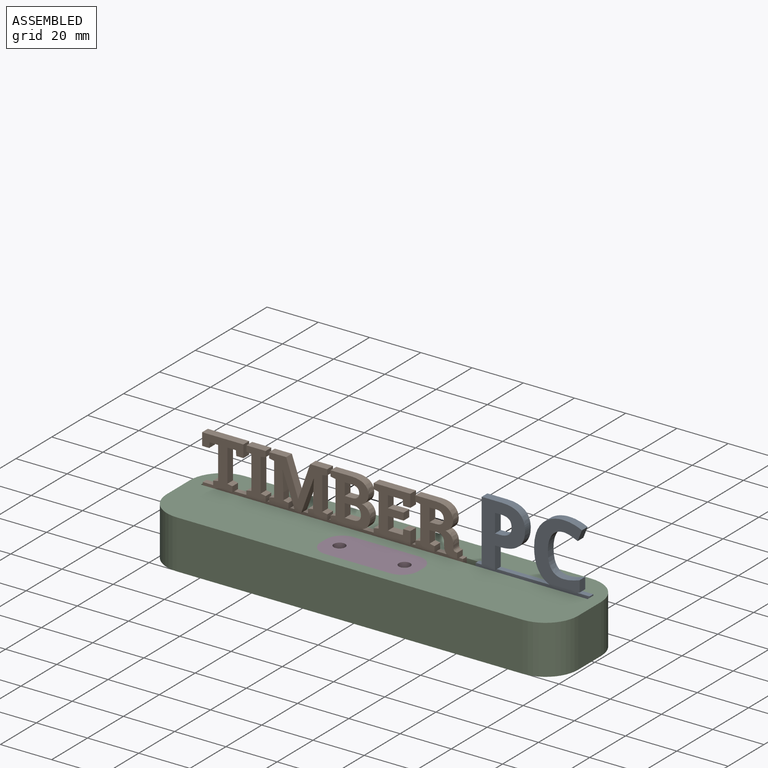
[diagram: assembled view]
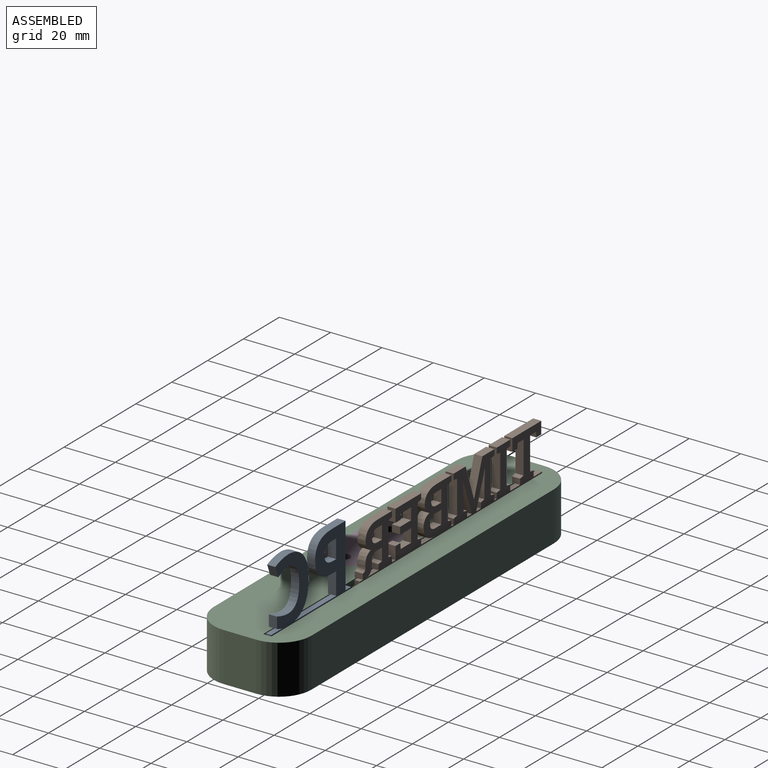
[diagram: assembled view, second angle]
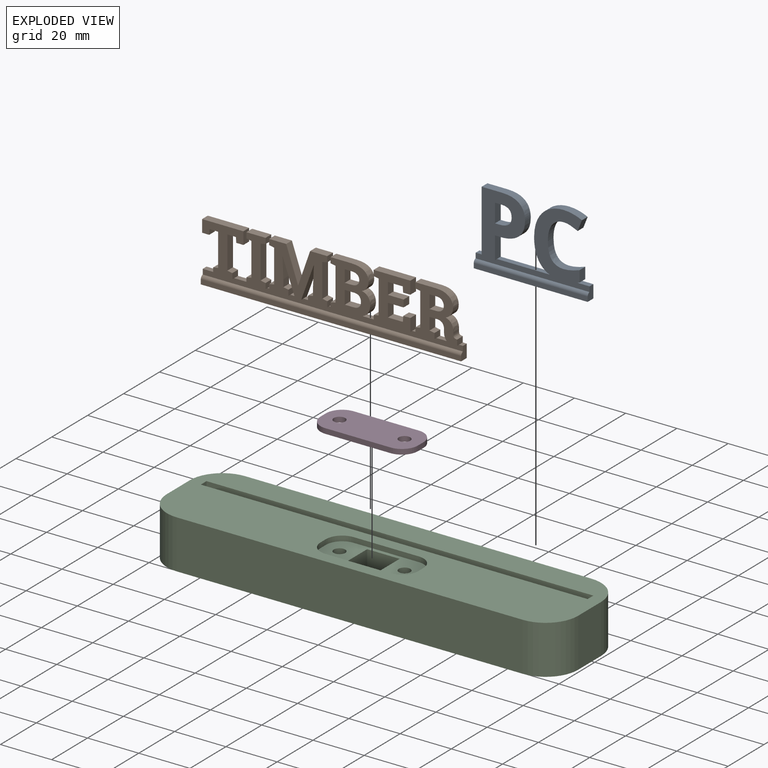
[diagram: exploded view]
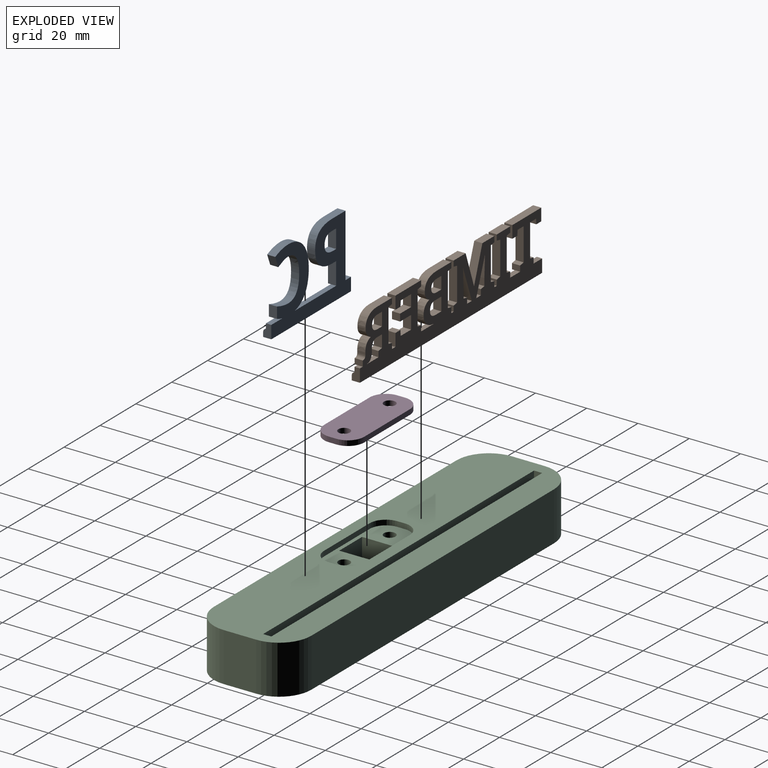
[diagram: exploded view, second angle]
ASSEMBLY  parts=4 mates=3
PART A: 44 faces, bbox 44.5x29.9x3.2 mm
  f0: plane 44.45x2mm, normal (0,0,1), area 88.9mm2, adj f8,f17,f18,f20,f21,f38,f40,f43
  f1: plane 3.18x1.71mm, normal (0,1,0), area 5.4mm2, adj f2,f36,f37,f39
  f2: plane 7.27x3.18mm, normal (1,0,0), area 23.1mm2, adj f1,f3,f37,f39
  f3: plane 3.18x2.36mm, normal (0,-1,0), area 7.5mm2, adj f2,f4,f37,f39
  f4: extruded ~3.18x3.13mm, area 10.5mm2, adj f3,f5,f37,f39
  f5: extruded ~3.18x2.7mm, area 9.4mm2, adj f4,f6,f37,f39
  f6: extruded ~3.18x2.75mm, area 9.9mm2, adj f5,f36,f37,f39
  f7: extruded ~4.99x3.18mm, area 18.7mm2, adj f8,f35,f37,f40,f41
  f8: plane 23.09x2.12mm, normal (0,1,0), area 48.9mm2, adj f0,f7,f9,f37
  f9: plane 8.72x3.18mm, normal (1,0,0), area 27.7mm2, adj f8,f10,f37,f38,f39
  f10: plane 3.18x2.23mm, normal (0,-1,0), area 7.1mm2, adj f9,f11,f37,f39
  f11: extruded ~7.03x3.18mm, area 23.8mm2, adj f10,f12,f37,f39
  f12: extruded ~6.05x3.18mm, area 21.5mm2, adj f11,f13,f37,f39
  f13: extruded ~5.72x3.18mm, area 20.3mm2, adj f12,f14,f37,f39
  f14: extruded ~6.78x3.18mm, area 22.8mm2, adj f13,f15,f37,f39
  f15: plane 7.83x3.18mm, normal (0,1,0), area 24.8mm2, adj f14,f16,f37,f39
  f16: plane 24.51x3.18mm, normal (-1,0,0), area 77.8mm2, adj f15,f17,f37,f38,f39
  f17: plane 3.08x2.12mm, normal (0,1,0), area 6.5mm2, adj f0,f16,f18,f37
  f18: plane 5.08x3.18mm, normal (-1,0,0), area 13.7mm2, adj f0,f17,f19,f37,f42,f43
  f19: plane 44.45x3.18mm, normal (0,-1,0), area 141.1mm2, adj f18,f20,f37,f42
  f20: plane 5.08x3.18mm, normal (1,0,0), area 13.7mm2, adj f0,f19,f21,f37,f42,f43
  f21: plane 6.22x2.12mm, normal (0,1,0), area 13.2mm2, adj f0,f20,f22,f37
  f22: extruded ~3.18x3.07mm, area 10.2mm2, adj f21,f23,f37,f40,f41
  f23: plane 4.36x3.18mm, normal (1,0,0), area 13.8mm2, adj f22,f24,f37,f41
  f24: extruded ~6.25x3.18mm, area 20.3mm2, adj f23,f25,f37,f41
  f25: extruded ~8.2x6.15mm, area 37.1mm2, adj f24,f26,f37,f41
  f26: extruded ~6.14x3.18mm, area 20.5mm2, adj f25,f27,f37,f41
  f27: extruded ~4.54x3.18mm, area 16.7mm2, adj f26,f28,f37,f41
  f28: extruded ~3.18x2.73mm, area 8.8mm2, adj f27,f29,f37,f41
  f29: extruded ~3.18x2.77mm, area 9.5mm2, adj f28,f30,f37,f41
  f30: plane 4.23x3.18mm, normal (0.93,-0.37,0), area 14.4mm2, adj f29,f31,f37,f41
  f31: extruded ~7.17x3.18mm, area 23.6mm2, adj f30,f32,f37,f41
  f32: extruded ~6.11x3.18mm, area 20.2mm2, adj f31,f33,f37,f41
  f33: extruded ~4.41x4mm, area 19.2mm2, adj f32,f34,f37,f41
  f34: extruded ~6.7x3.18mm, area 21.9mm2, adj f33,f35,f37,f41
  f35: extruded ~9.31x3.18mm, area 31.6mm2, adj f7,f34,f37,f41
  f36: extruded ~3.58x3.18mm, area 12mm2, adj f1,f6,f37,f39
  f37: plane 44.45x29.94mm, normal (0,0,-1), area 680.5mm2, adj f1,f2,f3,f4,f5,f6,f7,f8
  f38: plane 5.2x1.06mm, normal (0,-1,0), area 5.5mm2, adj f0,f9,f16,f39
  f39: plane 24.51x16.93mm, normal (0,0,1), area 245.4mm2, adj f1,f2,f3,f4,f5,f6,f9,f10
  f40: plane 6.85x1.06mm, normal (0,-1,0), area 7.3mm2, adj f0,f7,f22,f41
  f41: plane 24.86x18.67mm, normal (0,0,1), area 209.3mm2, adj f7,f22,f23,f24,f25,f26,f27,f28
  f42: plane 44.45x1.83mm, normal (0,0,1), area 81.2mm2, adj f18,f19,f20,f43
  f43: cylinder r=1.27mm len=44.45mm, axis (1,0,0), area 79.2mm2, adj f0,f18,f20,f42
PART B: 165 faces, bbox 101.6x23.2x3.2 mm
  f0: plane 3.18x2.51mm, normal (0,1,0), area 8mm2, adj f1,f145,f147,f162
  f1: plane 5.18x3.18mm, normal (1,0,0), area 16.5mm2, adj f0,f2,f147,f162
  f2: plane 3.18x2.57mm, normal (0,-1,0), area 8.2mm2, adj f1,f3,f147,f162
  f3: extruded ~3.18x2.22mm, area 7.6mm2, adj f2,f4,f147,f162
  f4: extruded ~3.18x1.95mm, area 6.8mm2, adj f3,f5,f147,f162
  f5: extruded ~3.18x1.86mm, area 6.6mm2, adj f4,f145,f147,f162
  f6: extruded ~3.18x2.5mm, area 8.8mm2, adj f7,f139,f147,f160,f162
  f7: plane 6.94x2.12mm, normal (0,1,0), area 14.7mm2, adj f6,f8,f146,f147
  f8: plane 3.18x2.18mm, normal (1,0,0), area 6.9mm2, adj f7,f9,f147,f161,f162
  f9: plane 3.18x1.94mm, normal (0.19,0.98,0), area 6.3mm2, adj f8,f10,f147,f162
  f10: plane 4.77x3.18mm, normal (1,0,0), area 15.2mm2, adj f9,f11,f147,f162
  f11: plane 3.18x2.97mm, normal (0,-1,0), area 9.4mm2, adj f10,f12,f147,f162
  f12: extruded ~3.18x1.98mm, area 7mm2, adj f11,f13,f147,f162
  f13: extruded ~3.18x2.07mm, area 7.1mm2, adj f12,f14,f147,f162
  f14: plane 3.18x1.03mm, normal (-1,0,0), area 3.3mm2, adj f13,f139,f147,f162
  f15: plane 3.18x2.61mm, normal (0,1,0), area 8.3mm2, adj f16,f140,f147,f157
  f16: plane 4.78x3.18mm, normal (1,0,0), area 15.2mm2, adj f15,f17,f147,f157
  f17: plane 3.18x2.49mm, normal (0,-1,0), area 7.9mm2, adj f16,f18,f147,f157
  f18: extruded ~3.18x2.36mm, area 7.8mm2, adj f17,f19,f147,f157
  f19: extruded ~3.18x1.85mm, area 6.6mm2, adj f18,f20,f147,f157
  f20: extruded ~3.18x1.74mm, area 6.3mm2, adj f19,f140,f147,f157
  f21: plane 5.22x3.18mm, normal (1,0,0), area 16.6mm2, adj f22,f141,f147,f157
  f22: plane 3.62x3.18mm, normal (0,-1,0), area 11.5mm2, adj f21,f23,f147,f157
  f23: extruded ~3.18x2.04mm, area 7mm2, adj f22,f24,f147,f157
  f24: extruded ~3.18x2.03mm, area 6.9mm2, adj f23,f25,f147,f157
  f25: extruded ~3.18x1.86mm, area 6.6mm2, adj f24,f26,f147,f157
  f26: extruded ~3.18x2.2mm, area 7.4mm2, adj f25,f141,f147,f157
  f27: plane 3.18x2.18mm, normal (-1,0,0), area 6.9mm2, adj f28,f142,f147,f153,f155
  f28: plane 2.65x2.12mm, normal (0,1,0), area 5.6mm2, adj f27,f29,f146,f147
  f29: plane 13.4x4.85mm, normal (0.94,-0.34,0), area 45.2mm2, adj f28,f30,f147,f152,f155
  f30: plane 3.18x0.08mm, normal (-0.16,-0.99,0), area 0.2mm2, adj f29,f31,f147,f155
  f31: plane 7.99x3.18mm, normal (-1,0.04,0), area 25.4mm2, adj f30,f32,f147,f155
  f32: plane 3.18x2.84mm, normal (-1,0,0), area 9mm2, adj f31,f142,f147,f155
  f33: plane 13.35x4.82mm, normal (-0.94,-0.34,0), area 45.1mm2, adj f34,f143,f147,f152,f155
  f34: plane 2.61x2.12mm, normal (0,1,0), area 5.5mm2, adj f33,f35,f146,f147
  f35: plane 3.18x2.18mm, normal (1,0,0), area 6.9mm2, adj f34,f36,f147,f154,f155
  f36: plane 3.18x1.94mm, normal (0.19,0.98,0), area 6.3mm2, adj f35,f37,f147,f155
  f37: plane 3.18x2.84mm, normal (1,0,0), area 9mm2, adj f36,f38,f147,f155
  f38: plane 7.94x3.18mm, normal (1,0.04,0), area 25.2mm2, adj f37,f143,f147,f155
  f39: plane 3.18x2.18mm, normal (1,0,0), area 6.9mm2, adj f40,f144,f147,f148,f149
  f40: plane 3.18x1.94mm, normal (0.19,0.98,0), area 6.3mm2, adj f39,f41,f147,f149
  f41: plane 12.75x3.18mm, normal (1,0,0), area 40.5mm2, adj f40,f42,f147,f149
  f42: plane 3.33x3.18mm, normal (0,-1,0), area 10.6mm2, adj f41,f43,f147,f149
  f43: plane 3.18x2.02mm, normal (-1,-0.07,0), area 6.4mm2, adj f42,f44,f147,f149
  f44: plane 3.18x2.78mm, normal (0,-1,0), area 8.8mm2, adj f43,f45,f147,f149
  f45: plane 4.82x3.18mm, normal (1,0,0), area 15.3mm2, adj f44,f46,f147,f149
  f46: plane 16.13x3.18mm, normal (0,1,0), area 51.2mm2, adj f45,f47,f147,f149
  f47: plane 4.82x3.18mm, normal (-1,0,0), area 15.3mm2, adj f46,f48,f147,f149
  f48: plane 3.18x2.77mm, normal (0,-1,0), area 8.8mm2, adj f47,f49,f147,f149
  f49: plane 3.18x2.02mm, normal (1,-0.07,0), area 6.4mm2, adj f48,f50,f147,f149
  f50: plane 3.32x3.18mm, normal (0,-1,0), area 10.5mm2, adj f49,f51,f147,f149
  f51: plane 12.75x3.18mm, normal (-1,0,0), area 40.5mm2, adj f50,f52,f147,f149
  f52: plane 3.18x1.94mm, normal (-0.19,0.98,0), area 6.3mm2, adj f51,f53,f147,f149
  f53: plane 3.18x2.18mm, normal (-1,0,0), area 6.9mm2, adj f52,f54,f147,f148,f149
  f54: plane 4.8x2.12mm, normal (0,1,0), area 10.2mm2, adj f53,f55,f146,f147
  f55: plane 5.08x3.18mm, normal (-1,0,0), area 13.7mm2, adj f54,f56,f146,f147,f163,f164
  f56: plane 101.6x3.18mm, normal (0,-1,0), area 322.6mm2, adj f55,f57,f147,f163
  f57: plane 5.08x3.18mm, normal (1,0,0), area 13.7mm2, adj f56,f58,f146,f147,f163,f164
  f58: plane 2.12x1.56mm, normal (0,1,0), area 3.3mm2, adj f57,f59,f146,f147
  f59: plane 3.18x2.19mm, normal (1,0,0), area 6.9mm2, adj f58,f60,f147,f160,f162
  f60: plane 3.18x0.45mm, normal (0.14,0.99,0), area 1.4mm2, adj f59,f61,f147,f162
  f61: extruded ~3.18x0.79mm, area 2.9mm2, adj f60,f62,f147,f162
  f62: extruded ~3.18x0.93mm, area 3.1mm2, adj f61,f63,f147,f162
  f63: plane 3.18x0.92mm, normal (1,0,0), area 2.9mm2, adj f62,f64,f147,f162
  f64: extruded ~3.18x2.73mm, area 9.1mm2, adj f63,f65,f147,f162
  f65: extruded ~3.18x2.31mm, area 9.1mm2, adj f64,f66,f147,f162
  f66: extruded ~3.18x2.15mm, area 8.7mm2, adj f65,f67,f147,f162
  f67: extruded ~3.18x2.37mm, area 8mm2, adj f66,f68,f147,f162
  f68: extruded ~3.9x3.18mm, area 14.1mm2, adj f67,f69,f147,f162
  f69: extruded ~4.83x3.18mm, area 16.3mm2, adj f68,f70,f147,f162
  f70: plane 8.13x3.18mm, normal (0,1,0), area 25.8mm2, adj f69,f71,f147,f162
  f71: plane 3.18x2.19mm, normal (-1,0,0), area 6.9mm2, adj f70,f72,f147,f162
  f72: plane 3.18x1.93mm, normal (-0.19,-0.98,0), area 6.2mm2, adj f71,f73,f147,f162
  f73: plane 12.99x3.18mm, normal (-1,0,0), area 41.2mm2, adj f72,f74,f147,f162
  f74: plane 3.18x1.93mm, normal (-0.19,0.98,0), area 6.2mm2, adj f73,f75,f147,f162
  f75: plane 3.18x2.18mm, normal (-1,0,0), area 6.9mm2, adj f74,f76,f147,f161,f162
  f76: plane 2.12x1.94mm, normal (0,1,0), area 4.1mm2, adj f75,f77,f146,f147
  f77: plane 4.95x3.18mm, normal (1,0,0), area 15.7mm2, adj f76,f78,f147,f158,f159
  f78: plane 3.18x2.76mm, normal (0,1,0), area 8.8mm2, adj f77,f79,f147,f159
  f79: plane 3.18x2.16mm, normal (-1,0.07,0), area 6.9mm2, adj f78,f80,f147,f159
  f80: plane 5.84x3.18mm, normal (0,1,0), area 18.6mm2, adj f79,f81,f147,f159
  f81: plane 5.17x3.18mm, normal (1,0,0), area 16.4mm2, adj f80,f82,f147,f159
  f82: plane 6.13x3.18mm, normal (0,-1,0), area 19.5mm2, adj f81,f83,f147,f159
  f83: plane 3.18x2.8mm, normal (1,0,0), area 8.9mm2, adj f82,f84,f147,f159
  f84: plane 6.13x3.18mm, normal (0,1,0), area 19.5mm2, adj f83,f85,f147,f159
  f85: plane 4.55x3.18mm, normal (1,0,0), area 14.4mm2, adj f84,f86,f147,f159
  f86: plane 5.79x3.18mm, normal (0,-1,0), area 18.4mm2, adj f85,f87,f147,f159
  f87: plane 3.18x2.16mm, normal (-1,-0.08,0), area 6.9mm2, adj f86,f88,f147,f159
  f88: plane 3.18x2.78mm, normal (0,-1,0), area 8.8mm2, adj f87,f89,f147,f159
  f89: plane 4.96x3.18mm, normal (1,0,0), area 15.7mm2, adj f88,f90,f147,f159
  f90: plane 14.29x3.18mm, normal (0,1,0), area 45.4mm2, adj f89,f91,f147,f159
  f91: plane 3.18x2.19mm, normal (-1,0,0), area 6.9mm2, adj f90,f92,f147,f159
  f92: plane 3.18x1.93mm, normal (-0.19,-0.98,0), area 6.2mm2, adj f91,f93,f147,f159
  f93: plane 12.99x3.18mm, normal (-1,0,0), area 41.2mm2, adj f92,f94,f147,f159
  f94: plane 3.18x1.93mm, normal (-0.19,0.98,0), area 6.2mm2, adj f93,f95,f147,f159
  f95: plane 3.18x2.18mm, normal (-1,0,0), area 6.9mm2, adj f94,f96,f147,f158,f159
  f96: plane 7.93x2.12mm, normal (0,1,0), area 16.8mm2, adj f95,f97,f146,f147
  f97: extruded ~4.86x3.18mm, area 16.3mm2, adj f96,f98,f147,f156,f157
  f98: extruded ~3.93x3.18mm, area 14.1mm2, adj f97,f99,f147,f157
  f99: extruded ~3.18x2.65mm, area 8.9mm2, adj f98,f100,f147,f157
  f100: extruded ~3.18x2.44mm, area 9.3mm2, adj f99,f101,f147,f157
  f101: extruded ~3.18x1.93mm, area 7.9mm2, adj f100,f102,f147,f157
  f102: extruded ~3.18x2.24mm, area 7.5mm2, adj f101,f103,f147,f157
  f103: extruded ~3.72x3.18mm, area 13.7mm2, adj f102,f104,f147,f157
  f104: extruded ~4.98x3.18mm, area 16.6mm2, adj f103,f105,f147,f157
  f105: plane 8.04x3.18mm, normal (0,1,0), area 25.5mm2, adj f104,f106,f147,f157
  f106: plane 3.18x2.19mm, normal (-1,0,0), area 6.9mm2, adj f105,f107,f147,f157
  f107: plane 3.18x1.93mm, normal (-0.19,-0.98,0), area 6.2mm2, adj f106,f108,f147,f157
  f108: plane 12.99x3.18mm, normal (-1,0,0), area 41.2mm2, adj f107,f109,f147,f157
  f109: plane 3.18x1.93mm, normal (-0.19,0.98,0), area 6.2mm2, adj f108,f110,f147,f157
  f110: plane 3.18x2.18mm, normal (-1,0,0), area 6.9mm2, adj f109,f111,f147,f156,f157
  f111: plane 2.12x1.29mm, normal (0,1,0), area 2.7mm2, adj f110,f112,f146,f147
  f112: plane 3.18x2.18mm, normal (1,0,0), area 6.9mm2, adj f111,f113,f147,f153,f155
  f113: plane 3.18x1.94mm, normal (0.19,0.98,0), area 6.3mm2, adj f112,f114,f147,f155
  f114: plane 12.99x3.18mm, normal (1,0,0), area 41.2mm2, adj f113,f115,f147,f155
  f115: plane 3.18x1.94mm, normal (0.19,-0.98,0), area 6.3mm2, adj f114,f116,f147,f155
  f116: plane 3.18x2.19mm, normal (1,0,0), area 6.9mm2, adj f115,f117,f147,f155
  f117: plane 6.69x3.18mm, normal (0,1,0), area 21.2mm2, adj f116,f118,f147,f155
  f118: plane 13.34x4.65mm, normal (-0.94,0.33,0), area 44.8mm2, adj f117,f119,f147,f155
  f119: plane 3.18x0.08mm, normal (0,1,0), area 0.2mm2, adj f118,f120,f147,f155
  f120: plane 13.34x4.61mm, normal (0.95,0.33,0), area 44.8mm2, adj f119,f121,f147,f155
  f121: plane 6.66x3.18mm, normal (0,1,0), area 21.2mm2, adj f120,f122,f147,f155
  f122: plane 3.18x2.19mm, normal (-1,0,0), area 6.9mm2, adj f121,f123,f147,f155
  f123: plane 3.18x1.93mm, normal (-0.19,-0.98,0), area 6.2mm2, adj f122,f124,f147,f155
  f124: plane 12.99x3.18mm, normal (-1,0,0), area 41.2mm2, adj f123,f125,f147,f155
  f125: plane 3.18x1.93mm, normal (-0.19,0.98,0), area 6.2mm2, adj f124,f126,f147,f155
  f126: plane 3.18x2.18mm, normal (-1,0,0), area 6.9mm2, adj f125,f127,f147,f154,f155
  f127: plane 2.12x1.38mm, normal (0,1,0), area 2.9mm2, adj f126,f128,f146,f147
  f128: plane 3.18x2.18mm, normal (1,0,0), area 6.9mm2, adj f127,f129,f147,f150,f151
  f129: plane 3.18x1.94mm, normal (0.19,0.98,0), area 6.3mm2, adj f128,f130,f147,f151
  f130: plane 12.99x3.18mm, normal (1,0,0), area 41.2mm2, adj f129,f131,f147,f151
  f131: plane 3.18x1.94mm, normal (0.19,-0.98,0), area 6.3mm2, adj f130,f132,f147,f151
  f132: plane 3.18x2.19mm, normal (1,0,0), area 6.9mm2, adj f131,f133,f147,f151
  f133: plane 7.49x3.18mm, normal (0,1,0), area 23.8mm2, adj f132,f134,f147,f151
  f134: plane 3.18x2.19mm, normal (-1,0,0), area 6.9mm2, adj f133,f135,f147,f151
  f135: plane 3.18x1.94mm, normal (-0.19,-0.98,0), area 6.3mm2, adj f134,f136,f147,f151
  f136: plane 12.99x3.18mm, normal (-1,0,0), area 41.2mm2, adj f135,f137,f147,f151
  f137: plane 3.18x1.94mm, normal (-0.19,0.98,0), area 6.3mm2, adj f136,f138,f147,f151
  f138: plane 3.18x2.18mm, normal (-1,0,0), area 6.9mm2, adj f137,f144,f147,f150,f151
  f139: extruded ~3.18x2.48mm, area 8.3mm2, adj f6,f14,f147,f162
  f140: extruded ~3.18x2.24mm, area 7.5mm2, adj f15,f20,f147,f157
  f141: plane 3.35x3.18mm, normal (0,1,0), area 10.6mm2, adj f21,f26,f147,f157
  f142: plane 3.18x1.93mm, normal (-0.19,0.98,0), area 6.2mm2, adj f27,f32,f147,f155
  f143: plane 3.18x0.08mm, normal (0.16,-0.99,0), area 0.2mm2, adj f33,f38,f147,f155
  f144: plane 5.49x2.12mm, normal (0,1,0), area 11.6mm2, adj f39,f138,f146,f147
  f145: extruded ~3.18x2.28mm, area 7.7mm2, adj f0,f5,f147,f162
  f146: plane 101.6x2mm, normal (0,0,1), area 203.2mm2, adj f7,f28,f34,f54,f55,f57,f58,f76
  f147: plane 101.6x23.18mm, normal (0,0,-1), area 1465.1mm2, adj f0,f1,f2,f3,f4,f5,f6,f7
  f148: plane 7.51x1.06mm, normal (0,-1,0), area 7.9mm2, adj f39,f53,f146,f149
  f149: plane 18.1x16.13mm, normal (0,0,1), area 121.3mm2, adj f39,f40,f41,f42,f43,f44,f45,f46
  f150: plane 7.49x1.06mm, normal (0,-1,0), area 7.9mm2, adj f128,f138,f146,f151
  f151: plane 18.1x7.49mm, normal (0,0,1), area 83.8mm2, adj f128,f129,f130,f131,f132,f133,f134,f135
  f152: plane 2.43x1.06mm, normal (0,-1,0), area 2.6mm2, adj f29,f33,f146,f155
  f153: plane 7.49x1.06mm, normal (0,-1,0), area 7.9mm2, adj f27,f112,f146,f155
  f154: plane 7.49x1.06mm, normal (0,-1,0), area 7.9mm2, adj f35,f126,f146,f155
  f155: plane 22.68x18.1mm, normal (0,0,1), area 245.1mm2, adj f27,f29,f30,f31,f32,f33,f35,f36
  f156: plane 8.9x1.06mm, normal (0,-1,0), area 9.4mm2, adj f97,f110,f146,f157
  f157: plane 18.1x15.48mm, normal (0,0,1), area 176.1mm2, adj f15,f16,f17,f18,f19,f20,f21,f22
  f158: plane 14.32x1.06mm, normal (0,-1,0), area 15.2mm2, adj f77,f95,f146,f159
  f159: plane 18.1x14.32mm, normal (0,0,1), area 153.1mm2, adj f77,f78,f79,f80,f81,f82,f83,f84
  f160: plane 1.88x1.06mm, normal (0,-1,0), area 2mm2, adj f6,f59,f146,f162
  f161: plane 7.49x1.06mm, normal (0,-1,0), area 7.9mm2, adj f8,f75,f146,f162
  f162: plane 18.1x16.31mm, normal (0,0,1), area 169.4mm2, adj f0,f1,f2,f3,f4,f5,f6,f8
  f163: plane 101.6x1.83mm, normal (0,0,1), area 185.7mm2, adj f55,f56,f57,f164
  f164: cylinder r=1.27mm len=101.6mm, axis (1,0,0), area 181.1mm2, adj f55,f57,f146,f163
PART C: 31 faces, bbox 160.5x38.1x19.1 mm
  f0: plane 135.13x19.05mm, normal (0,1,0), area 2574.2mm2, adj f1,f19,f20,f21
  f1: cylinder r=12.7mm len=19.05mm, axis (0,0,-1), area 380mm2, adj f0,f2,f20,f21
  f2: plane 19.05x12.7mm, normal (-1,0,0), area 241.9mm2, adj f1,f3,f20,f21
  f3: cylinder r=12.7mm len=19.05mm, axis (0,0,-1), area 380mm2, adj f2,f4,f20,f21
  f4: plane 135.13x19.05mm, normal (0,-1,0), area 2574.2mm2, adj f3,f5,f20,f21
  f5: cylinder r=12.7mm len=19.05mm, axis (0,0,-1), area 380mm2, adj f4,f6,f20,f21
  f6: plane 19.05x12.7mm, normal (1,0,0), area 241.9mm2, adj f5,f19,f20,f21
  f7: cylinder r=6.35mm len=6.35mm, axis (0,0,-1), area 19.9mm2, adj f8,f17,f20,f29
  f8: plane 25.4x2mm, normal (0,-1,0), area 50.8mm2, adj f7,f9,f20,f29
  f9: cylinder r=6.35mm len=6.35mm, axis (0,0,-1), area 19.9mm2, adj f8,f10,f20,f29
  f10: plane 2.97x2mm, normal (-1,0,0), area 5.9mm2, adj f9,f11,f20,f29
  f11: cylinder r=6.35mm len=6.35mm, axis (0,0,-1), area 19.9mm2, adj f10,f12,f20,f29
  f12: plane 25.4x2mm, normal (0,1,0), area 50.8mm2, adj f11,f13,f20,f29
  f13: cylinder r=6.35mm len=6.35mm, axis (0,0,-1), area 19.9mm2, adj f12,f17,f20,f29
  f14: plane 4.57x3.2mm, normal (1,0,0), area 14.6mm2, adj f15,f18,f20,f22
  f15: plane 151x4.57mm, normal (0,-1,0), area 690.4mm2, adj f14,f16,f20,f22
  f16: plane 4.57x3.2mm, normal (-1,0,0), area 14.6mm2, adj f15,f18,f20,f22
  f17: plane 2.97x2mm, normal (1,0,0), area 5.9mm2, adj f7,f13,f20,f29
  f18: plane 151x4.57mm, normal (0,1,0), area 690.4mm2, adj f14,f16,f20,f22
  f19: cylinder r=12.7mm len=19.05mm, axis (0,0,-1), area 380mm2, adj f0,f6,f20,f21
  f20: plane 160.53x38.1mm, normal (0,0,1), area 4931.8mm2, adj f0,f1,f2,f3,f4,f5,f6,f7
  f21: plane 160.53x38.1mm, normal (0,0,-1), area 5945.9mm2, adj f0,f1,f2,f3,f4,f5,f6,f19
  f22: plane 151x3.2mm, normal (0,0,1), area 483.3mm2, adj f14,f15,f16,f18
  f23: plane 13.24x12.7mm, normal (-1,0,0), area 168.1mm2, adj f24,f28,f29,f30
  f24: plane 13.24x12.7mm, normal (0,1,0), area 168.1mm2, adj f23,f25,f29,f30
  f25: plane 13.24x12.7mm, normal (1,0,0), area 168.1mm2, adj f24,f28,f29,f30
  f26: cylinder r=2.25mm len=17.05mm, axis (0,0,-1), area 241mm2, adj f21,f29
  f27: cylinder r=2.25mm len=17.05mm, axis (0,0,-1), area 241mm2, adj f21,f29
  f28: plane 13.24x12.7mm, normal (0,-1,0), area 168.1mm2, adj f23,f25,f29,f30
  f29: plane 38.1x15.67mm, normal (0,0,1), area 369.5mm2, adj f7,f8,f9,f10,f11,f12,f13,f17
  f30: plane 12.7x12.7mm, normal (0,0,1), area 161.3mm2, adj f23,f24,f25,f28
PART D: 12 faces, bbox 38.1x15.7x2 mm
  f0: plane 25.4x2mm, normal (0,1,0), area 50.8mm2, adj f1,f9,f10,f11
  f1: cylinder r=6.35mm len=6.35mm, axis (0,0,-1), area 19.9mm2, adj f0,f2,f10,f11
  f2: plane 2.97x2mm, normal (-1,0,0), area 5.9mm2, adj f1,f3,f10,f11
  f3: cylinder r=6.35mm len=6.35mm, axis (0,0,-1), area 19.9mm2, adj f2,f4,f10,f11
  f4: plane 25.4x2mm, normal (0,-1,0), area 50.8mm2, adj f3,f5,f10,f11
  f5: cylinder r=6.35mm len=6.35mm, axis (0,0,-1), area 19.9mm2, adj f4,f6,f10,f11
  f6: plane 2.97x2mm, normal (1,0,0), area 5.9mm2, adj f5,f9,f10,f11
  f7: cylinder r=2.25mm len=4.5mm, axis (0,0,-1), area 28.3mm2, adj f10,f11
  f8: cylinder r=2.25mm len=4.5mm, axis (0,0,-1), area 28.3mm2, adj f10,f11
  f9: cylinder r=6.35mm len=6.35mm, axis (0,0,-1), area 19.9mm2, adj f0,f6,f10,f11
  f10: plane 38.1x15.67mm, normal (0,0,1), area 530.8mm2, adj f0,f1,f2,f3,f4,f5,f6,f7
  f11: plane 38.1x15.67mm, normal (0,0,-1), area 530.8mm2, adj f0,f1,f2,f3,f4,f5,f6,f7
PLACE A rot(axis=(1,0,0),90deg) t=(4.4,3.04,12.59)mm
PLACE B rot(axis=(1,0,0),90deg) t=(1.22,3.04,12.59)mm
PLACE C t=(2.81,12.89,15.13)mm
PLACE D t=(2.81,52.28,32.18)mm
MATE fastened D.f7 <-> C.f26  axis (0,0,-1) through (-10.91,-12.5,32.18)mm
MATE fastened B.f56 <-> C.f22  axis (0,0,-1) through (-73.71,1.46,29.61)mm
MATE revolute A.f19 <-> C.f22  axis (0,0,-1) through (77.29,1.46,29.61)mm
